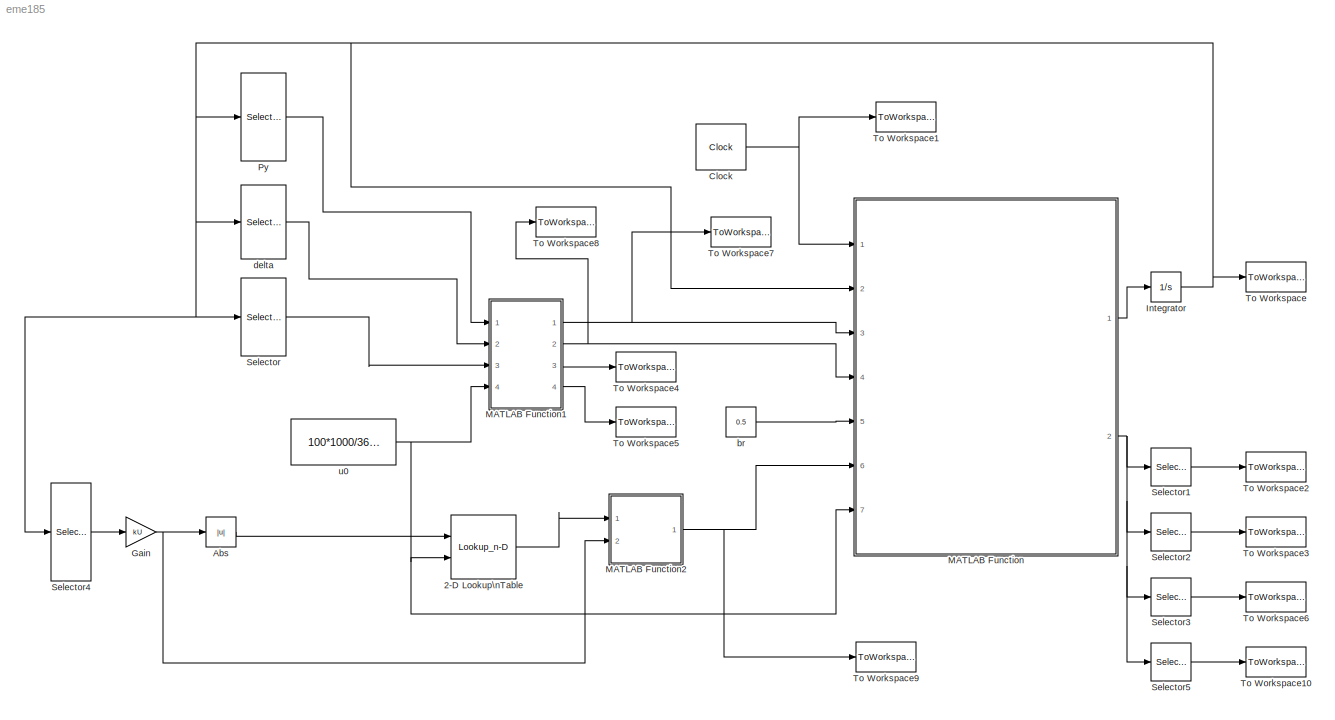
MODEL eme185
KIND model
BLOCK [Lookup_n-D] 2-D Lookup\nTable
  BreakpointsForDimension1 = [0.0 0.6 1.1 1.6 2.1 2.6 3.2 3.7 4.2 4.7 5.2 5.7 6.3]
  BreakpointsForDimension2 = [0 5.5556 11.1111 22.2222 27.7778 33.3333]
  InternalRulePriority = Speed
  Ports = [2, 1]
  RndMeth = Simplest
  SID = 16
  Table = [0 0 0 1.1 2.0 7.0 14.6 22.3 29.7 37.4 45.0 45.0 45.0;0 0 0 0 0 5.4 12.6 19.1 25.0 31.1 36.5 40.5 40.5;0 0 0 0 0 4.7 10.6 16.4 21.6 27.2 32.4 36.0 36.0;0 0 0 0.5 1.5 4.1 7.7 11.5 15.8 19.8 23.0 23.0 23.0;0 0 0 0 0 2.9 6.1 9.5 12.8 16.7 22.1 22.1 22.1;0 0 0 0 0 2.3 5.0 7.9 11.7 15.1 22.1 22.1 22.1]'
BLOCK [Abs] Abs
  SID = 35
  SaturateOnIntegerOverflow = off
BLOCK [Clock] Clock
  DisplayTime = on
  SID = 7
BLOCK [Gain] Gain
  Gain = kU
  OutDataTypeStr = Inherit: Inherit via internal rule
  ParamDataTypeStr = Inherit: Inherit via internal rule
  SID = 26
  SaturateOnIntegerOverflow = off
BLOCK [Integrator] Integrator
  InitialCondition = initial
  Ports = [1, 1]
  SID = 2
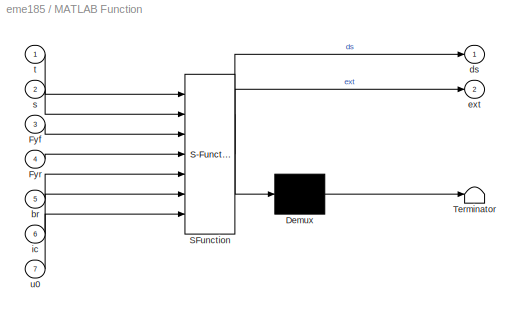
BLOCK [SubSystem] MATLAB Function
  ErrorFcn = Stateflow.Translate.translate
  PermitHierarchicalResolution = ExplicitOnly
  Ports = [7, 2]
  RequestExecContextInheritance = off
  SFBlockType = MATLAB Function
  SID = 1
  TreatAsAtomicUnit = on
  Variant = off
BLOCK [Demux] MATLAB Function/ Demux 
  Outputs = 1
  Ports = [1, 1]
  SID = 1::62
BLOCK [S-Function] MATLAB Function/ SFunction 
  EnableBusSupport = on
  FunctionName = sf_sfun
  Parameters = Ca,Cy,Jm,Jwd,Jy,T,a,b,bL,bm,gr,kL,kU,l,m,rp
  PortCounts = [7 3]
  Ports = [7, 3]
  SFunctionDeploymentMode = off
  SID = 1::61
  Tag = Stateflow S-Function eme185 2
BLOCK [Terminator] MATLAB Function/ Terminator 
  SID = 1::63
BLOCK [Inport] MATLAB Function/Fyf
  IconDisplay = Port number
  Port = 3
  SID = 1::80
BLOCK [Inport] MATLAB Function/Fyr
  IconDisplay = Port number
  Port = 4
  SID = 1::81
BLOCK [Inport] MATLAB Function/br
  IconDisplay = Port number
  Port = 5
  SID = 1::82
BLOCK [Outport] MATLAB Function/ds
  IconDisplay = Port number
  SID = 1::5
BLOCK [Outport] MATLAB Function/ext
  IconDisplay = Port number
  Port = 2
  SID = 1::86
BLOCK [Inport] MATLAB Function/ic
  IconDisplay = Port number
  Port = 6
  SID = 1::83
BLOCK [Inport] MATLAB Function/s
  IconDisplay = Port number
  Port = 2
  SID = 1::64
BLOCK [Inport] MATLAB Function/t
  IconDisplay = Port number
  SID = 1::1
BLOCK [Inport] MATLAB Function/u0
  IconDisplay = Port number
  Port = 7
  SID = 1::84
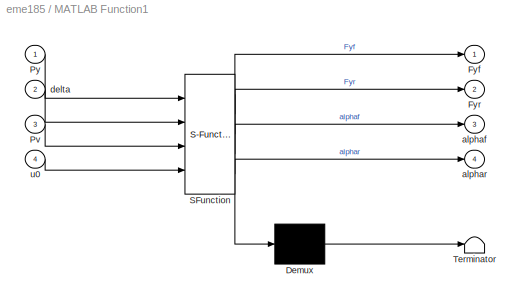
BLOCK [SubSystem] MATLAB Function1
  ErrorFcn = Stateflow.Translate.translate
  PermitHierarchicalResolution = ExplicitOnly
  Ports = [4, 4]
  RequestExecContextInheritance = off
  SFBlockType = MATLAB Function
  SID = 5
  TreatAsAtomicUnit = on
  Variant = off
BLOCK [Demux] MATLAB Function1/ Demux 
  Outputs = 1
  Ports = [1, 1]
  SID = 5::17
BLOCK [S-Function] MATLAB Function1/ SFunction 
  EnableBusSupport = on
  FunctionName = sf_sfun
  Parameters = Cy,Jy,a,b,m
  PortCounts = [4 5]
  Ports = [4, 5]
  SFunctionDeploymentMode = off
  SID = 5::16
  Tag = Stateflow S-Function eme185 1
BLOCK [Terminator] MATLAB Function1/ Terminator 
  SID = 5::18
BLOCK [Outport] MATLAB Function1/Fyf
  IconDisplay = Port number
  SID = 5::5
BLOCK [Outport] MATLAB Function1/Fyr
  IconDisplay = Port number
  Port = 2
  SID = 5::24
BLOCK [Inport] MATLAB Function1/Pv
  IconDisplay = Port number
  Port = 3
  SID = 5::27
BLOCK [Inport] MATLAB Function1/Py
  IconDisplay = Port number
  SID = 5::1
BLOCK [Outport] MATLAB Function1/alphaf
  IconDisplay = Port number
  Port = 3
  SID = 5::29
BLOCK [Outport] MATLAB Function1/alphar
  IconDisplay = Port number
  Port = 4
  SID = 5::30
BLOCK [Inport] MATLAB Function1/delta
  IconDisplay = Port number
  Port = 2
  SID = 5::19
BLOCK [Inport] MATLAB Function1/u0
  IconDisplay = Port number
  Port = 4
  SID = 5::25
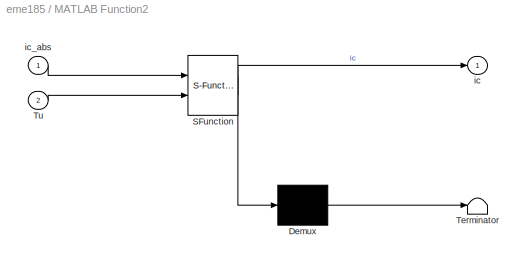
BLOCK [SubSystem] MATLAB Function2
  ErrorFcn = Stateflow.Translate.translate
  PermitHierarchicalResolution = ExplicitOnly
  Ports = [2, 1]
  RequestExecContextInheritance = off
  SFBlockType = MATLAB Function
  SID = 36
  TreatAsAtomicUnit = on
  Variant = off
BLOCK [Demux] MATLAB Function2/ Demux 
  Outputs = 1
  Ports = [1, 1]
  SID = 36::17
BLOCK [S-Function] MATLAB Function2/ SFunction 
  EnableBusSupport = on
  FunctionName = sf_sfun
  PortCounts = [2 2]
  Ports = [2, 2]
  SFunctionDeploymentMode = off
  SID = 36::16
  Tag = Stateflow S-Function eme185 3
BLOCK [Terminator] MATLAB Function2/ Terminator 
  SID = 36::18
BLOCK [Inport] MATLAB Function2/Tu
  IconDisplay = Port number
  Port = 2
  SID = 36::19
BLOCK [Outport] MATLAB Function2/ic
  IconDisplay = Port number
  SID = 36::5
BLOCK [Inport] MATLAB Function2/ic_abs
  IconDisplay = Port number
  SID = 36::1
BLOCK [Selector] Py
  IndexOptions = Index vector (dialog)
  Indices = [2]
  InputPortWidth = 10
  OutputSizes = 1
  Ports = [1, 1]
  SID = 4
BLOCK [Selector] Selector
  IndexOptions = Index vector (dialog)
  Indices = [1]
  InputPortWidth = 10
  OutputSizes = 1
  Ports = [1, 1]
  SID = 15
BLOCK [Selector] Selector1
  IndexOptions = Index vector (dialog)
  Indices = [1]
  InputPortWidth = 4
  OutputSizes = 1
  Ports = [1, 1]
  SID = 21
BLOCK [Selector] Selector2
  IndexOptions = Index vector (dialog)
  Indices = [2]
  InputPortWidth = 4
  OutputSizes = 1
  Ports = [1, 1]
  SID = 22
BLOCK [Selector] Selector3
  IndexOptions = Index vector (dialog)
  Indices = [3]
  InputPortWidth = 4
  OutputSizes = 1
  Ports = [1, 1]
  SID = 23
BLOCK [Selector] Selector4
  IndexOptions = Index vector (dialog)
  Indices = [5]
  InputPortWidth = 10
  OutputSizes = 1
  Ports = [1, 1]
  SID = 25
BLOCK [Selector] Selector5
  IndexOptions = Index vector (dialog)
  Indices = [4]
  InputPortWidth = 4
  OutputSizes = 1
  Ports = [1, 1]
  SID = 31
BLOCK [ToWorkspace] To Workspace
  FixptAsFi = on
  MaxDataPoints = inf
  Ports = [1]
  SID = 9
  SampleTime = -1
  Save2DSignal = 3-D array (concatenate along third dimension)
  VariableName = s
BLOCK [ToWorkspace] To Workspace1
  FixptAsFi = on
  MaxDataPoints = inf
  Ports = [1]
  SID = 10
  SampleTime = -1
  Save2DSignal = 3-D array (concatenate along third dimension)
  VariableName = t
BLOCK [ToWorkspace] To Workspace10
  FixptAsFi = on
  MaxDataPoints = inf
  Ports = [1]
  SID = 32
  SampleTime = -1
  Save2DSignal = 3-D array (concatenate along third dimension)
  SaveFormat = Timeseries
  VariableName = dPm
BLOCK [ToWorkspace] To Workspace2
  FixptAsFi = on
  MaxDataPoints = inf
  Ports = [1]
  SID = 17
  SampleTime = -1
  Save2DSignal = 3-D array (concatenate along third dimension)
  SaveFormat = Timeseries
  VariableName = Fv
BLOCK [ToWorkspace] To Workspace3
  FixptAsFi = on
  MaxDataPoints = inf
  Ports = [1]
  SID = 18
  SampleTime = -1
  Save2DSignal = 3-D array (concatenate along third dimension)
  SaveFormat = Timeseries
  VariableName = alat
BLOCK [ToWorkspace] To Workspace4
  FixptAsFi = on
  MaxDataPoints = inf
  Ports = [1]
  SID = 19
  SampleTime = -1
  Save2DSignal = 3-D array (concatenate along third dimension)
  SaveFormat = Timeseries
  VariableName = alphaf
BLOCK [ToWorkspace] To Workspace5
  FixptAsFi = on
  MaxDataPoints = inf
  Ports = [1]
  SID = 20
  SampleTime = -1
  Save2DSignal = 3-D array (concatenate along third dimension)
  SaveFormat = Timeseries
  VariableName = alphar
BLOCK [ToWorkspace] To Workspace6
  FixptAsFi = on
  MaxDataPoints = inf
  Ports = [1]
  SID = 24
  SampleTime = -1
  Save2DSignal = 3-D array (concatenate along third dimension)
  SaveFormat = Timeseries
  VariableName = Wsw
BLOCK [ToWorkspace] To Workspace7
  FixptAsFi = on
  MaxDataPoints = inf
  Ports = [1]
  SID = 27
  SampleTime = -1
  Save2DSignal = 3-D array (concatenate along third dimension)
  SaveFormat = Timeseries
  VariableName = Fyf
BLOCK [ToWorkspace] To Workspace8
  FixptAsFi = on
  MaxDataPoints = inf
  Ports = [1]
  SID = 28
  SampleTime = -1
  Save2DSignal = 3-D array (concatenate along third dimension)
  SaveFormat = Timeseries
  VariableName = Fyr
BLOCK [ToWorkspace] To Workspace9
  FixptAsFi = on
  MaxDataPoints = inf
  Ports = [1]
  SID = 29
  SampleTime = -1
  Save2DSignal = 3-D array (concatenate along third dimension)
  SaveFormat = Timeseries
  VariableName = ic
BLOCK [Constant] br
  SID = 3
  Value = 0.5
BLOCK [Selector] delta
  IndexOptions = Index vector (dialog)
  Indices = [7]
  InputPortWidth = 10
  OutputSizes = 1
  Ports = [1, 1]
  SID = 6
BLOCK [Constant] u0
  SID = 13
  Value = 100*1000/3600
LINE 2-D Lookup\nTable:1 -> MATLAB Function2:1
LINE Abs:1 -> 2-D Lookup\nTable:1
NET Clock:1 -> MATLAB Function:1, To Workspace1:1
NET Gain:1 -> Abs:1, MATLAB Function2:2
NET Integrator:1 -> MATLAB Function:2, Py:1, Selector4:1, Selector:1, To Workspace:1, delta:1
LINE MATLAB Function/ Demux :1 -> MATLAB Function/ Terminator :1
LINE MATLAB Function/ SFunction :1 -> MATLAB Function/ Demux :1
LINE MATLAB Function/ SFunction :2 -> MATLAB Function/ds:1
LINE MATLAB Function/ SFunction :3 -> MATLAB Function/ext:1
LINE MATLAB Function/Fyf:1 -> MATLAB Function/ SFunction :3
LINE MATLAB Function/Fyr:1 -> MATLAB Function/ SFunction :4
LINE MATLAB Function/br:1 -> MATLAB Function/ SFunction :5
LINE MATLAB Function/ic:1 -> MATLAB Function/ SFunction :6
LINE MATLAB Function/s:1 -> MATLAB Function/ SFunction :2
LINE MATLAB Function/t:1 -> MATLAB Function/ SFunction :1
LINE MATLAB Function/u0:1 -> MATLAB Function/ SFunction :7
LINE MATLAB Function1/ Demux :1 -> MATLAB Function1/ Terminator :1
LINE MATLAB Function1/ SFunction :1 -> MATLAB Function1/ Demux :1
LINE MATLAB Function1/ SFunction :2 -> MATLAB Function1/Fyf:1
LINE MATLAB Function1/ SFunction :3 -> MATLAB Function1/Fyr:1
LINE MATLAB Function1/ SFunction :4 -> MATLAB Function1/alphaf:1
LINE MATLAB Function1/ SFunction :5 -> MATLAB Function1/alphar:1
LINE MATLAB Function1/Pv:1 -> MATLAB Function1/ SFunction :3
LINE MATLAB Function1/Py:1 -> MATLAB Function1/ SFunction :1
LINE MATLAB Function1/delta:1 -> MATLAB Function1/ SFunction :2
LINE MATLAB Function1/u0:1 -> MATLAB Function1/ SFunction :4
NET MATLAB Function1:1 -> MATLAB Function:3, To Workspace7:1
NET MATLAB Function1:2 -> MATLAB Function:4, To Workspace8:1
LINE MATLAB Function1:3 -> To Workspace4:1
LINE MATLAB Function1:4 -> To Workspace5:1
LINE MATLAB Function2/ Demux :1 -> MATLAB Function2/ Terminator :1
LINE MATLAB Function2/ SFunction :1 -> MATLAB Function2/ Demux :1
LINE MATLAB Function2/ SFunction :2 -> MATLAB Function2/ic:1
LINE MATLAB Function2/Tu:1 -> MATLAB Function2/ SFunction :2
LINE MATLAB Function2/ic_abs:1 -> MATLAB Function2/ SFunction :1
NET MATLAB Function2:1 -> MATLAB Function:6, To Workspace9:1
LINE MATLAB Function:1 -> Integrator:1
NET MATLAB Function:2 -> Selector1:1, Selector2:1, Selector3:1, Selector5:1
LINE Py:1 -> MATLAB Function1:1
LINE Selector1:1 -> To Workspace2:1
LINE Selector2:1 -> To Workspace3:1
LINE Selector3:1 -> To Workspace6:1
LINE Selector4:1 -> Gain:1
LINE Selector5:1 -> To Workspace10:1
LINE Selector:1 -> MATLAB Function1:3
LINE br:1 -> MATLAB Function:5
LINE delta:1 -> MATLAB Function1:2
NET u0:1 -> 2-D Lookup\nTable:2, MATLAB Function1:4, MATLAB Function:7
note: NET lines group one-source signal fan-out (src -> all destinations, sorted); 1:1 wires keep LINE
CHART MATLAB Function1 states=1 transitions=1
  STATE_LABEL 'eML_blk_kernel()'
CHART MATLAB Function states=1 transitions=1
  STATE_LABEL 'eML_blk_kernel()'
CHART MATLAB Function2 states=1 transitions=1
  STATE_LABEL 'eML_blk_kernel()'
